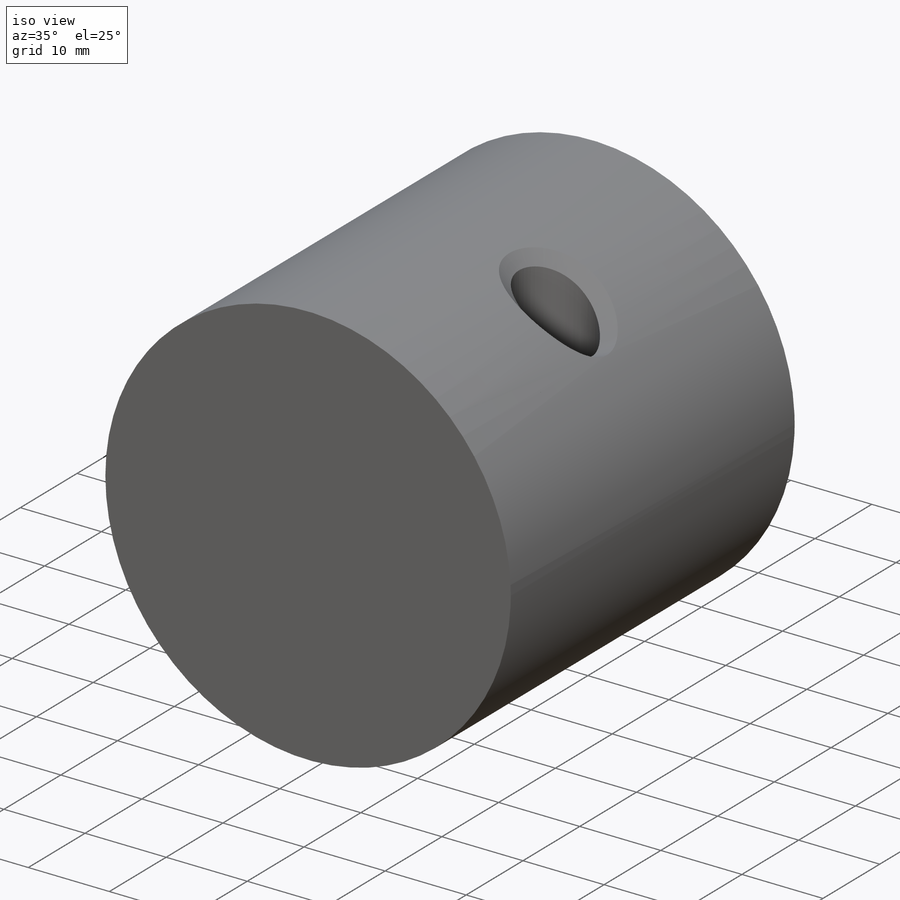
[diagram: iso view]
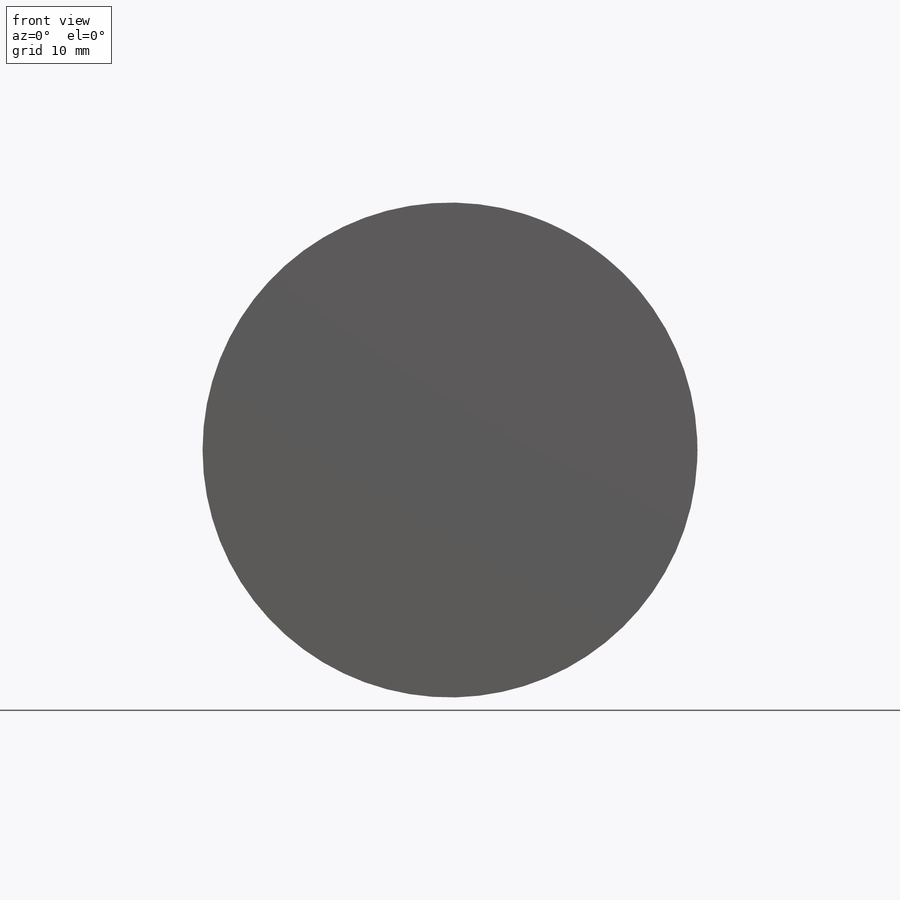
[diagram: front view]
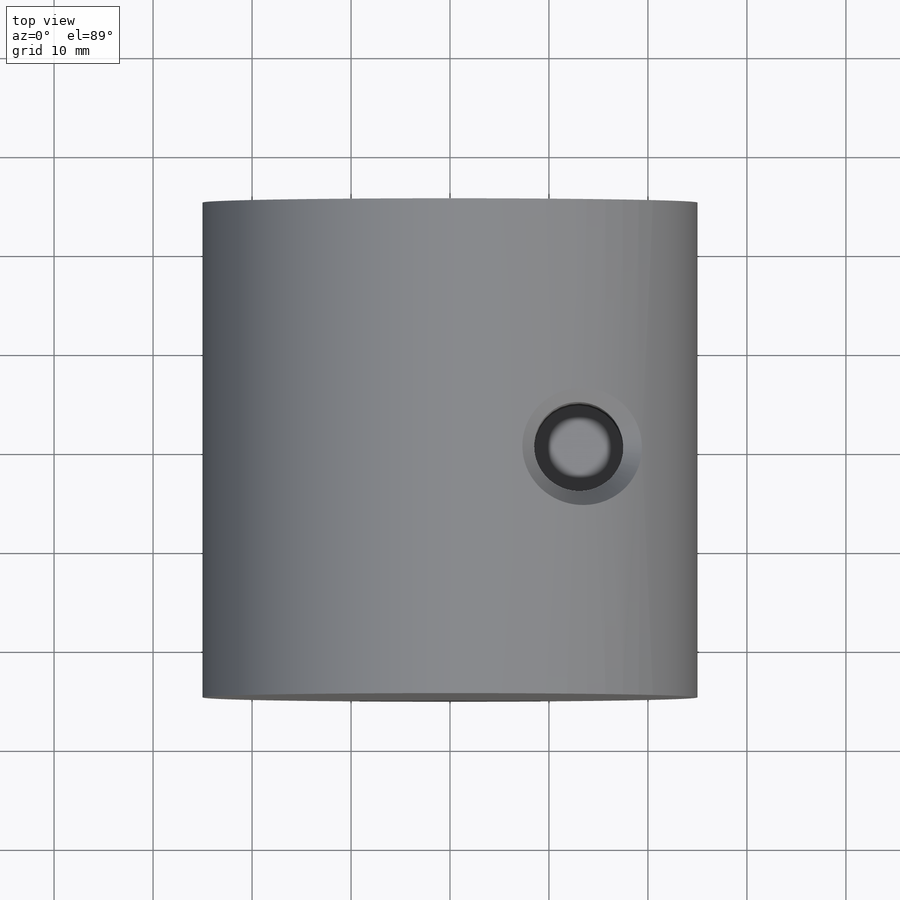
[diagram: top view]
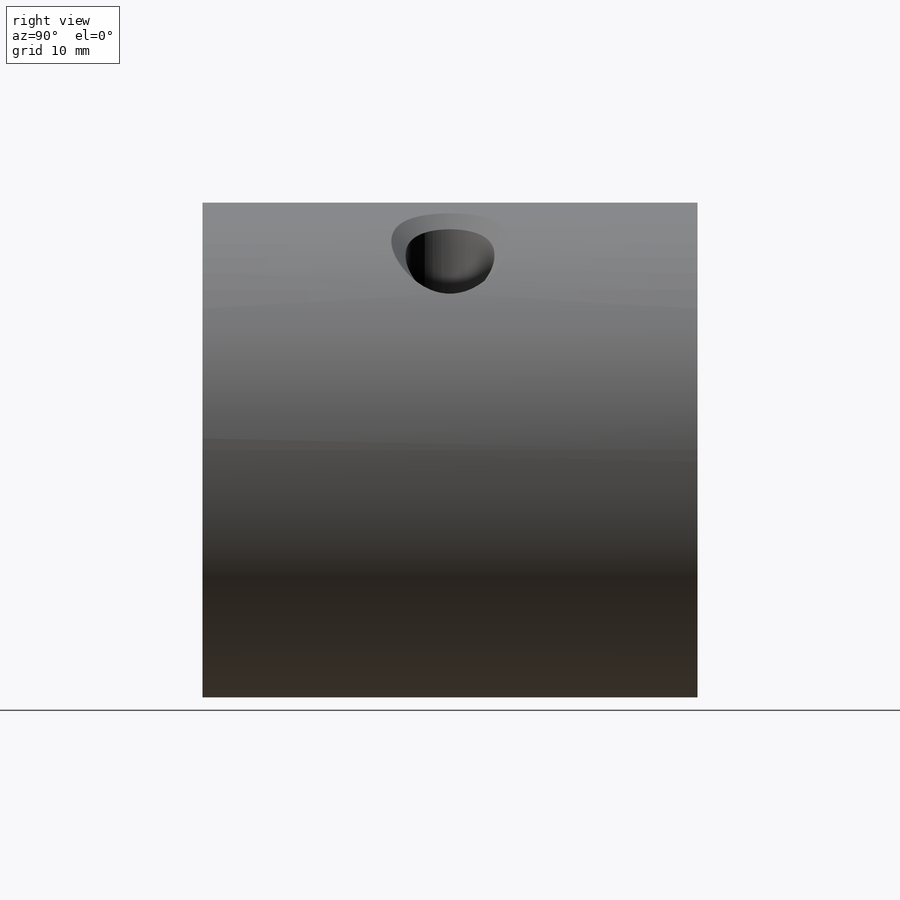
[diagram: right view]
SOLIDWORKS PART (.sldprt)
format: sldprt  version: not decoded by parser v0  size: 219,136 bytes
history: native  units: mm
features: sketch x3, material x1, plane x1, extrude x1, cut_extrude x1, fillet x1 + 2 further entries (+13 scaffold rows collapsed; 1 parser-record rows omitted)
feature tree (24):
  scaffold x13  (default folders/planes/origin — collapsed)
  material  "Material <nicht festgelegt>"
  plane  "Ebene vorne"
  parser-record x1  (decoder bookkeeping rows leaked as tree rows — omitted from the tree; the rows remain in map.json)
  "yAchse"
  "zAchse"
  sketch  "Skizze1"  dims[D1=50.0mm]
  extrude  "Aufsatz-Linear austragen1"  Depth=50mm
  sketch  "Skizze2"  dims[c1.D1=~10.313693mm c1.D2=9.0mm c2.D1=13.0mm]
  cut_extrude  "Schnitt-Linear austragen1"  Depth=50mm
  fillet  "Verrundung1"  Radius=2mm
  sketch  "Skizze3"  dims[D1=~1.263771mm]
decode coverage: 6 of 6 modeling features carry decoded parameters; 2 rows unclassified (native names shown)
note: ~ marks probable driven/reference dimensions
note: suppression state not decoded; provenance and decode notes live in map.json
